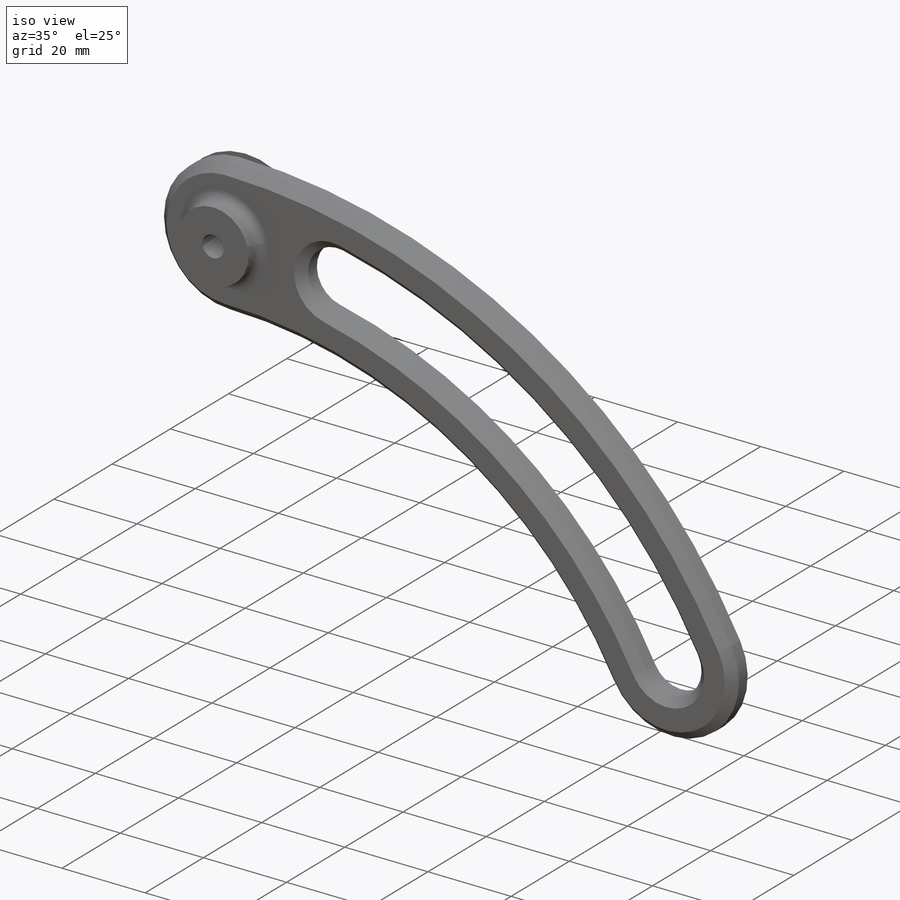
[diagram: iso view]
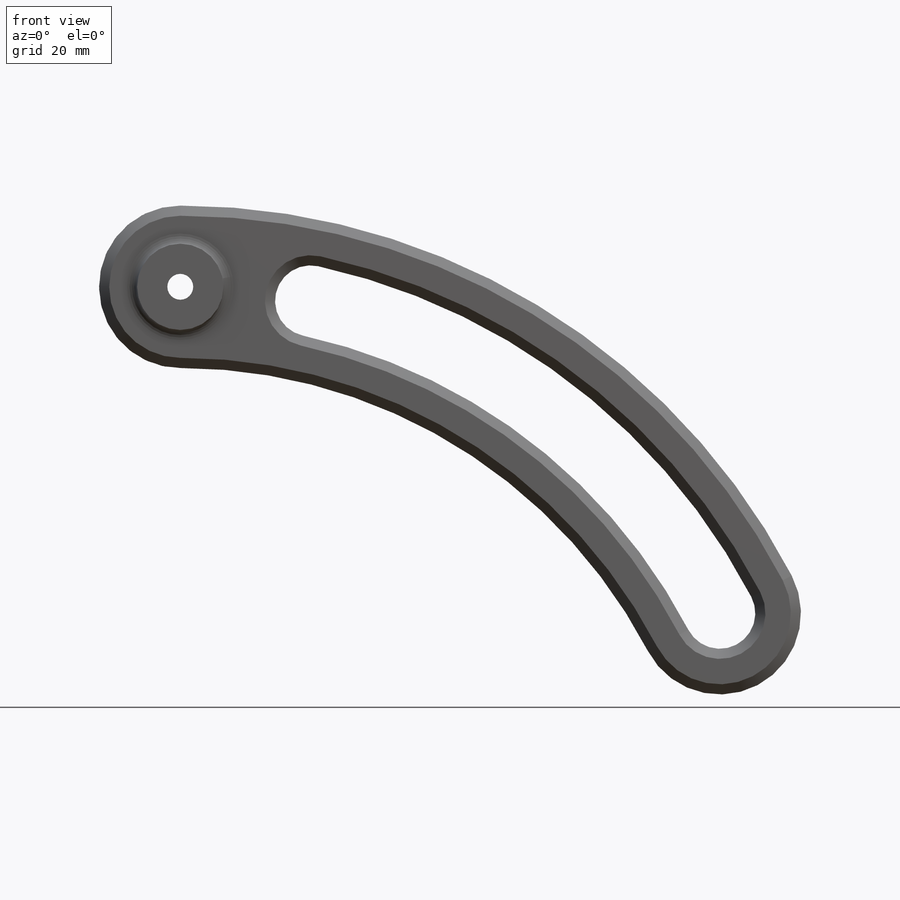
[diagram: front view]
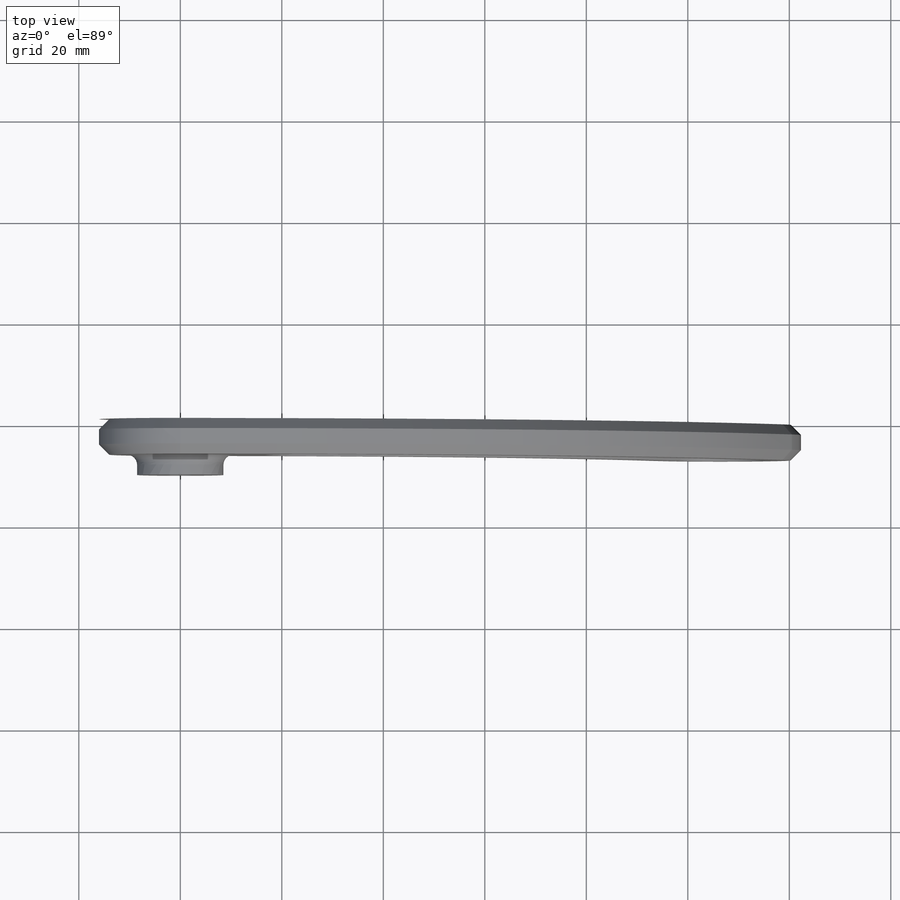
[diagram: top view]
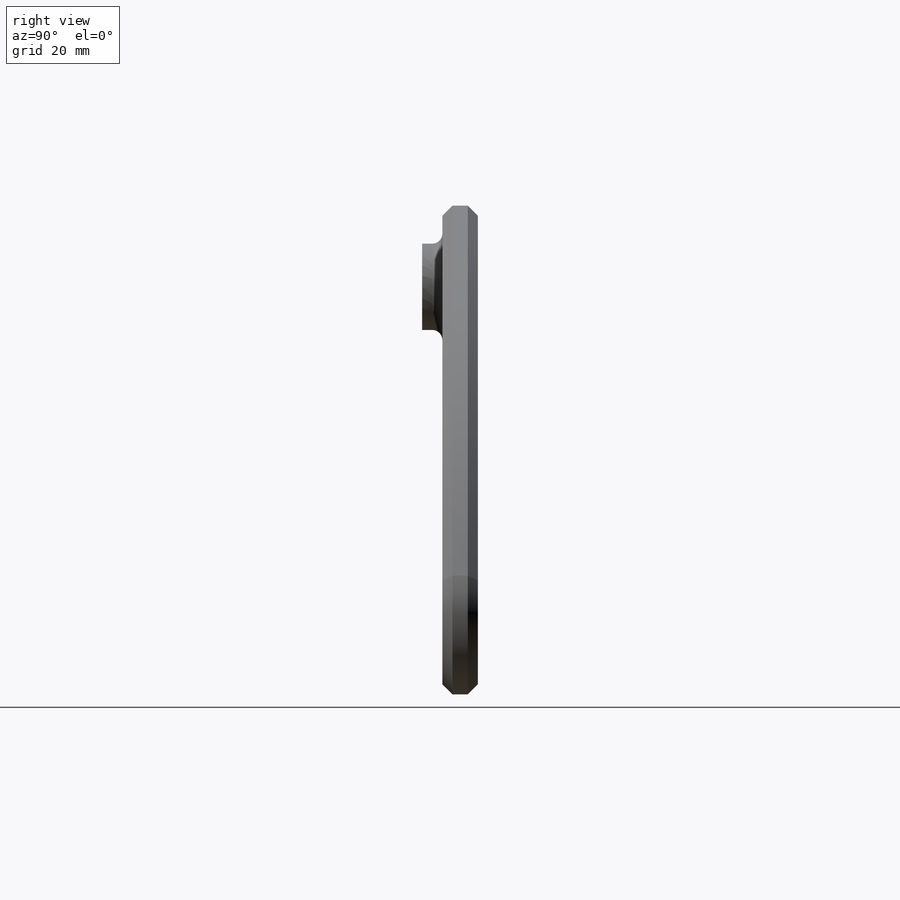
[diagram: right view]
SOLIDWORKS PART (.sldprt)
format: sldprt  version: not decoded by parser v0  size: 351,232 bytes
history: native  units: mm
features: sketch x9, extrude x5, chamfer x2, fillet x2, cut_extrude x2, plane x2, revolve x2, material x1 (+13 scaffold rows collapsed)
feature tree (38):
  scaffold x13  (default folders/planes/origin — collapsed)
  material  "ABS"
  sketch  "Sketch1"  dims[c1.D1=5.1mm c1.D2=17.0mm c1.D3=7.0mm c1.D4=16.0mm c2.D3=70.0mm c2.D5=~69.135714mm c3.D5=50.0deg c3.D6=120.0mm c3.D7=90.0mm c4.D7=70.0deg]
  extrude  "Boss-Extrude1"  Depth=7mm
  extrude  "Boss-Extrude2"  [1 undecoded]
  sketch  "Sketch1<3>"  dims[D1=4.0mm]
  chamfer  "Chamfer1"  Distance=2mm Angle=45deg
  fillet  "Fillet2"  Radius=2mm
  sketch  "Sketch2"  dims[D1=10.5mm]
  cut_extrude  "Cut-Extrude1"  Depth=9mm
  plane  "Plane2"
  sketch  "Sketch10"
  plane  "Plane1"
  sketch  "Sketch3"  dims[D1=0.75mm D2=0.75mm]
  revolve  "Revolve1"  Angle=360deg
  chamfer  "Chamfer2"  Distance=0.75mm Angle=60deg
  fillet  "Fillet3"  Radius=0.5mm
  sketch  "Sketch4"  dims[D1=0.0mm]
  extrude  "Boss-Extrude4"  [1 undecoded]
  sketch  "Sketch5"  dims[D1=5.1mm D2=9.5mm]
  cut_extrude  "Cut-Extrude2"  [1 undecoded]
  sketch  "Sketch7"
  extrude  "Printed Bridging Diaphragm"  Depth=0.5mm
  sketch  "Sketch8"  dims[D1=10.0mm D2=10.0mm]
  extrude  "Printed Hold Down Tabls"  Depth=0.5mm
  revolve  "Axis2"  [1 undecoded]
decode coverage: 16 of 22 modeling features carry decoded parameters
note: ~ marks probable driven/reference dimensions
note: 4 parameter values undecoded
summary: no parameter record found for 4 features
note: suppression state not decoded; provenance and decode notes live in map.json
